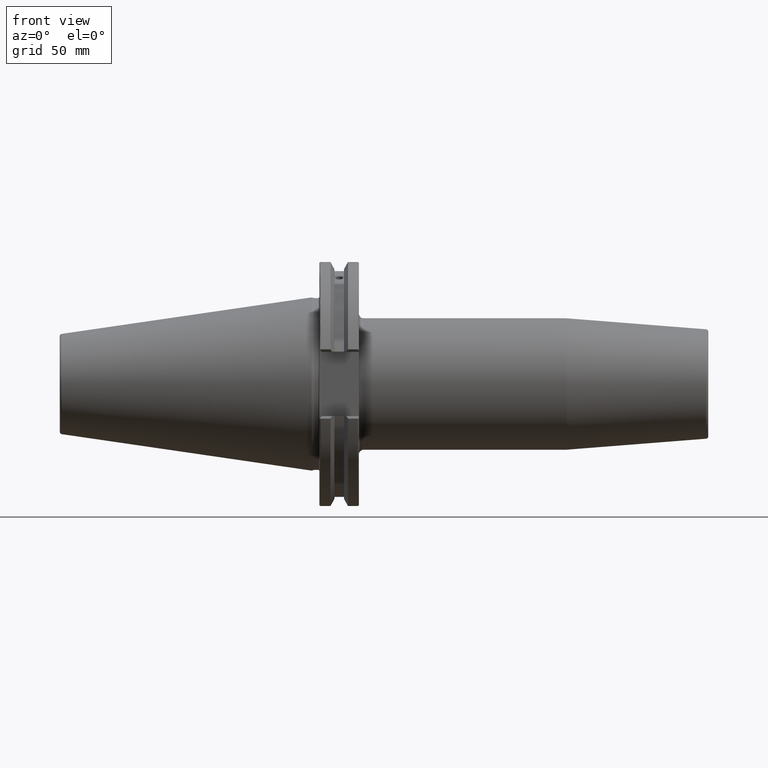
[diagram: clean part render]
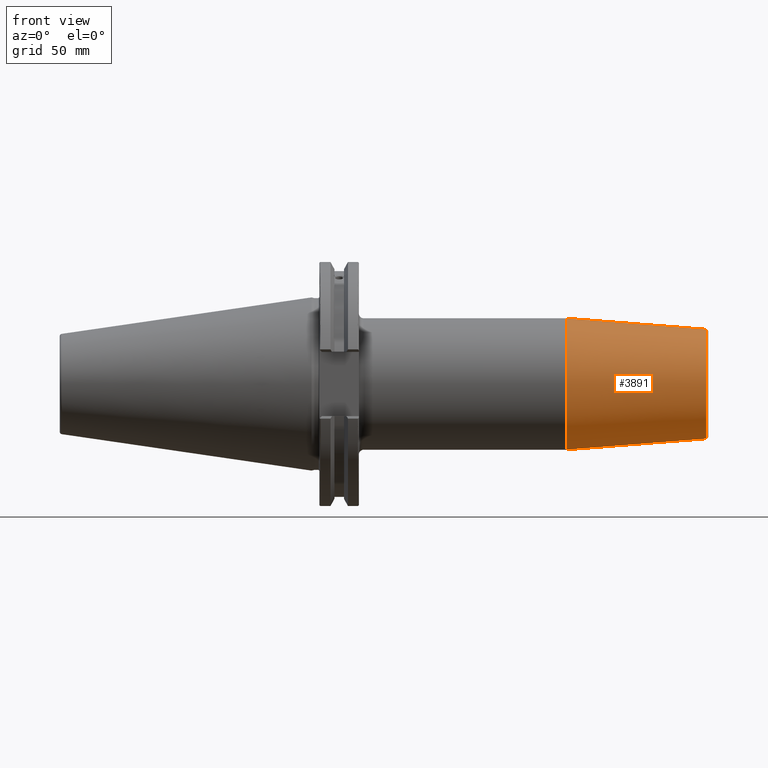
[diagram: same view with one face highlighted and labeled with its STEP entity id]
A machine part, front view. The second image highlights one B-rep face of the part: STEP entity #3891.
In plain terms, the highlighted conical surface has half-angle 4.5 deg.
Its self-contained STEP definition (entity closure, byte-faithful):
#1639=DIRECTION('',(-9.969173337331E-1,1.265079349861E-12,7.845909572784E-2));
#1640=VECTOR('',#1639,5.643033630271E1);
#1641=CARTESIAN_POINT('',(1.590784590958E2,-7.139473734430E-11,
2.207252684207E1));
#1642=LINE('',#1641,#1640);
#1643=DIRECTION('',(-9.969173337331E-1,-1.265144274797E-12,-7.845909572784E-2));
#1644=VECTOR('',#1643,5.643033630271E1);
#1645=CARTESIAN_POINT('',(1.590784590958E2,7.139251689825E-11,
-2.207252684207E1));
#1646=LINE('',#1645,#1644);
#1647=CARTESIAN_POINT('',(1.590784590957E2,0.E0,0.E0));
#1648=DIRECTION('',(-1.E0,0.E0,0.E0));
#1649=DIRECTION('',(0.E0,0.E0,-1.E0));
#1650=AXIS2_PLACEMENT_3D('',#1647,#1648,#1649);
#1662=CARTESIAN_POINT('',(1.028220786872E2,0.E0,0.E0));
#1663=DIRECTION('',(-1.E0,0.E0,0.E0));
#1664=DIRECTION('',(0.E0,0.E0,-1.E0));
#1665=AXIS2_PLACEMENT_3D('',#1662,#1663,#1664);
#2008=CARTESIAN_POINT('',(1.028220786872E2,0.E0,-2.65E1));
#2009=CARTESIAN_POINT('',(1.028220786872E2,0.E0,2.65E1));
#2010=VERTEX_POINT('',#2008);
#2011=VERTEX_POINT('',#2009);
#2052=CARTESIAN_POINT('',(1.590784590957E2,0.E0,2.207252684207E1));
#2053=CARTESIAN_POINT('',(1.590784590957E2,0.E0,-2.207252684207E1));
#2054=VERTEX_POINT('',#2052);
#2055=VERTEX_POINT('',#2053);
#3878=CARTESIAN_POINT('',(1.309502688915E2,0.E0,0.E0));
#3879=DIRECTION('',(-1.E0,0.E0,0.E0));
#3880=DIRECTION('',(0.E0,0.E0,-1.E0));
#3881=AXIS2_PLACEMENT_3D('',#3878,#3879,#3880);
#3882=CONICAL_SURFACE('',#3881,2.428626342104E1,4.5E0);
#3884=ORIENTED_EDGE('',*,*,#3883,.F.);
#3885=ORIENTED_EDGE('',*,*,#3873,.T.);
#3887=ORIENTED_EDGE('',*,*,#3886,.T.);
#3888=ORIENTED_EDGE('',*,*,#3869,.F.);
#3889=EDGE_LOOP('',(#3884,#3885,#3887,#3888));
#3890=FACE_OUTER_BOUND('',#3889,.F.);
#3891=ADVANCED_FACE('',(#3890),#3882,.T.);
#1651=CIRCLE('',#1650,2.207252684207E1);
#1666=CIRCLE('',#1665,2.65E1);
#3869=EDGE_CURVE('',#2054,#2011,#1642,.T.);
#3873=EDGE_CURVE('',#2055,#2010,#1646,.T.);
#3883=EDGE_CURVE('',#2055,#2054,#1651,.T.);
#3886=EDGE_CURVE('',#2010,#2011,#1666,.T.);